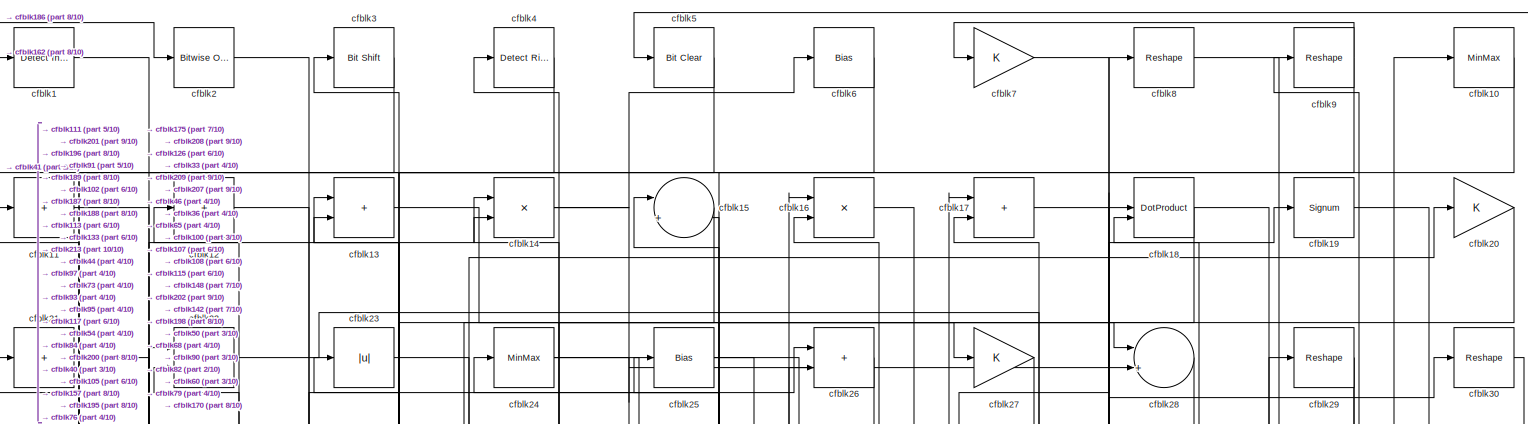
[diagram: root canvas - part 1/10, full width, top band]
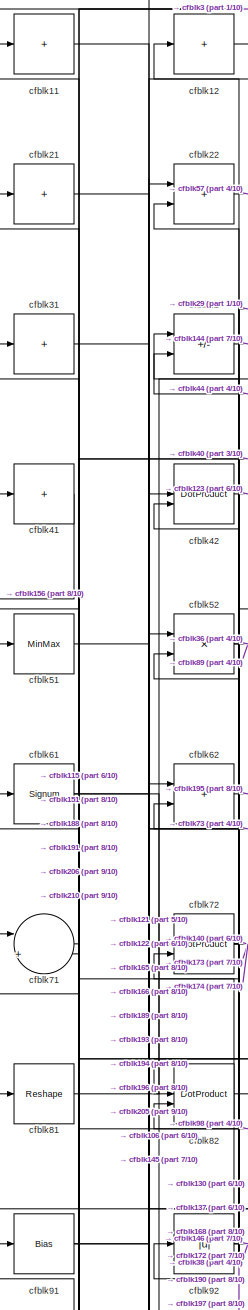
[diagram: root canvas - part 2/10, top left region]
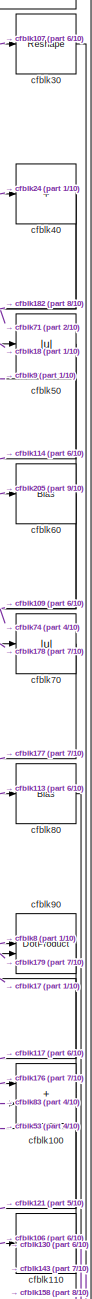
[diagram: root canvas - part 3/10, top right region]
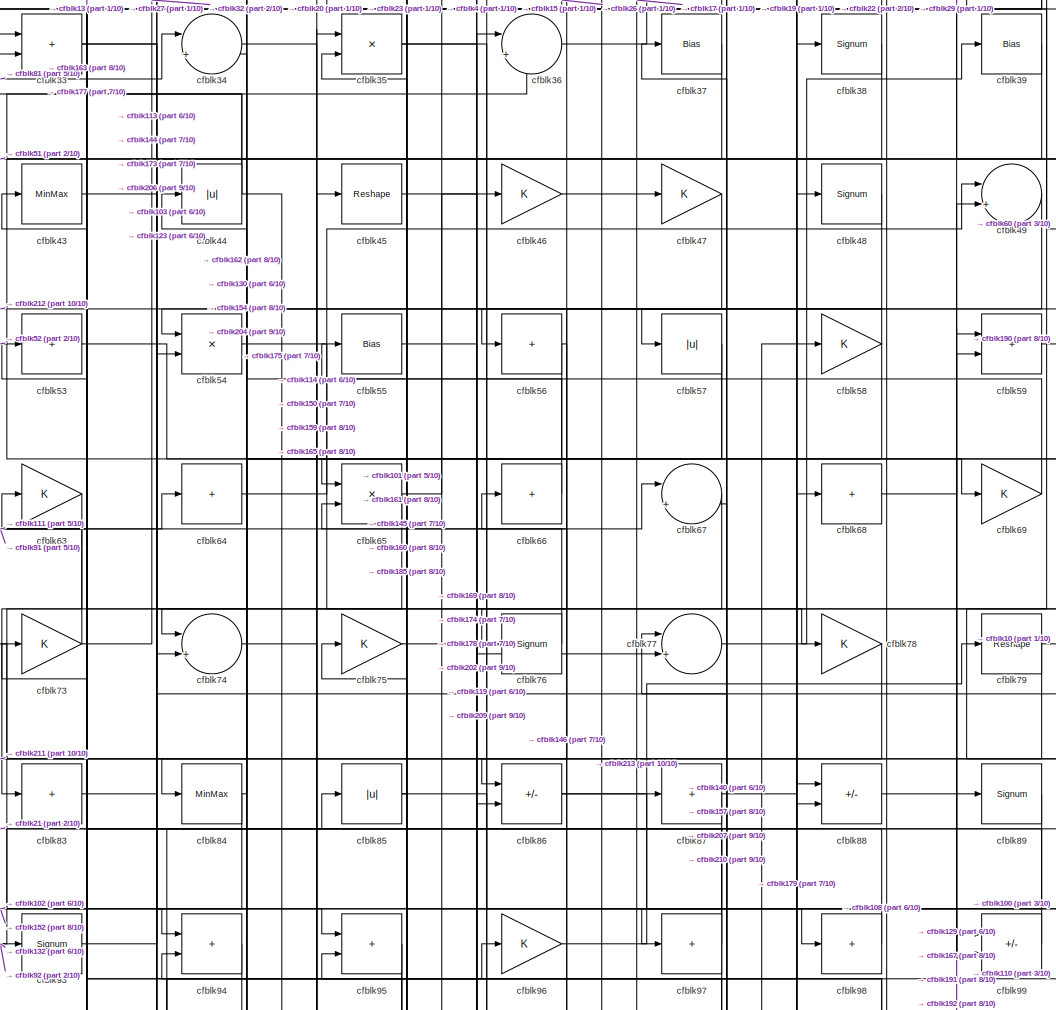
[diagram: root canvas - part 4/10, top center region]
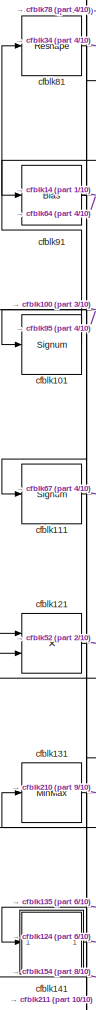
[diagram: root canvas - part 5/10, middle left region]
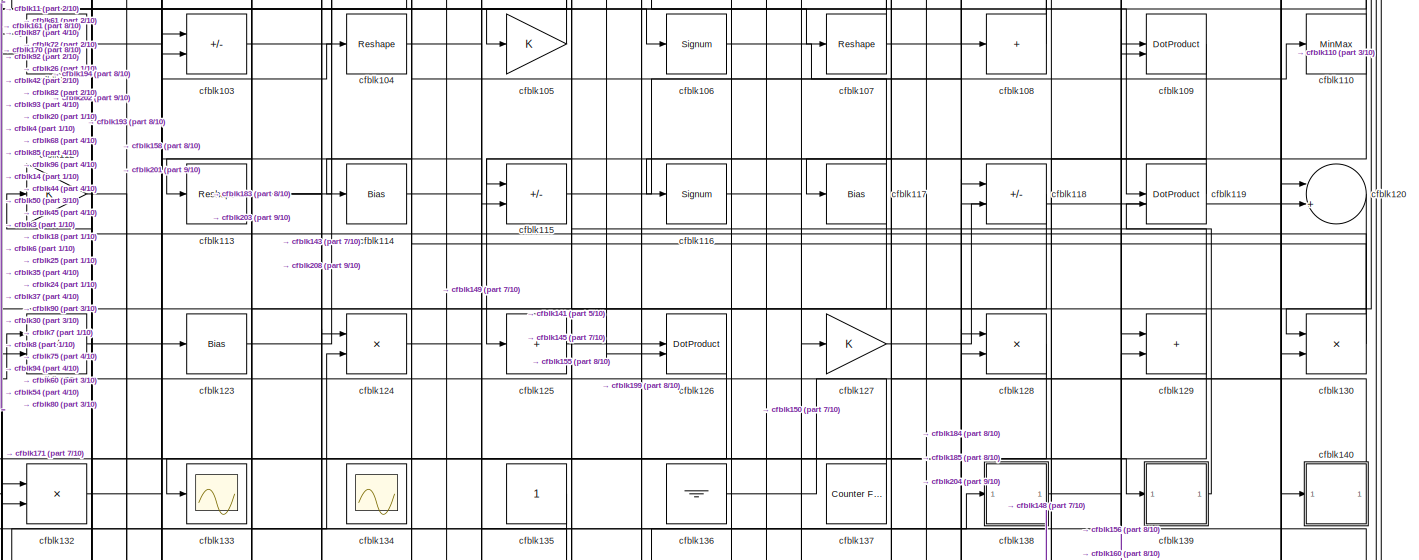
[diagram: root canvas - part 6/10, full width, middle band]
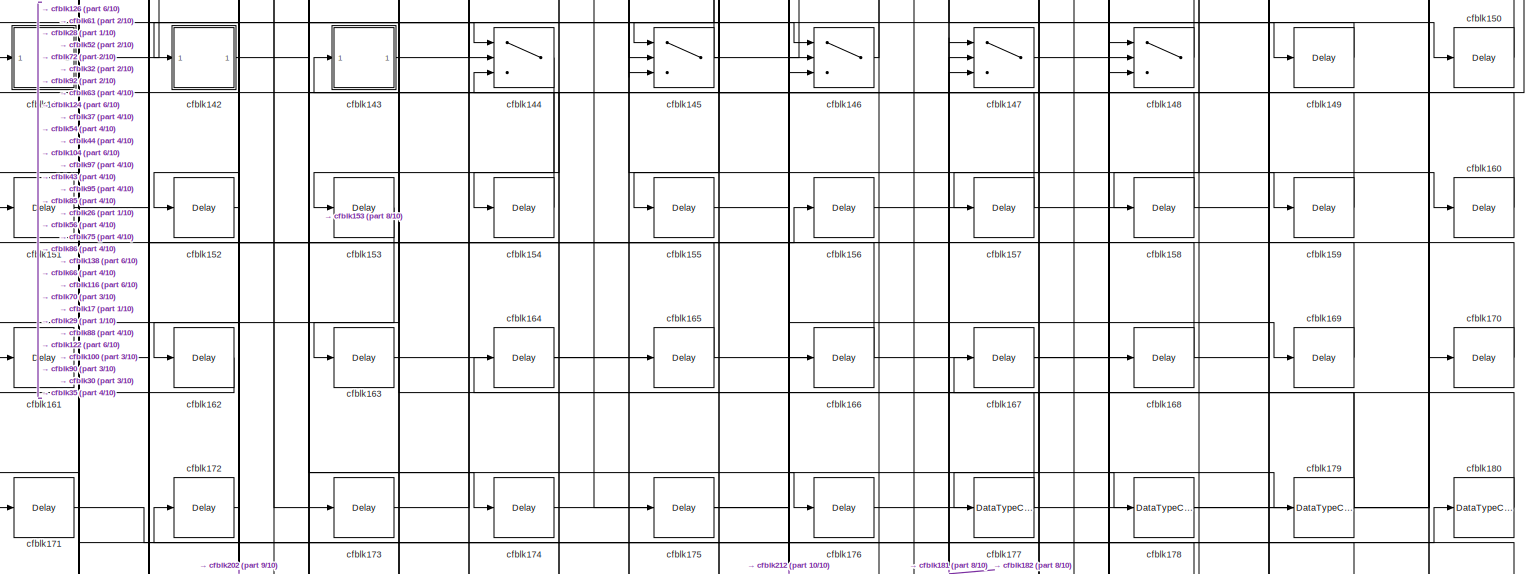
[diagram: root canvas - part 7/10, full width, bottom band]
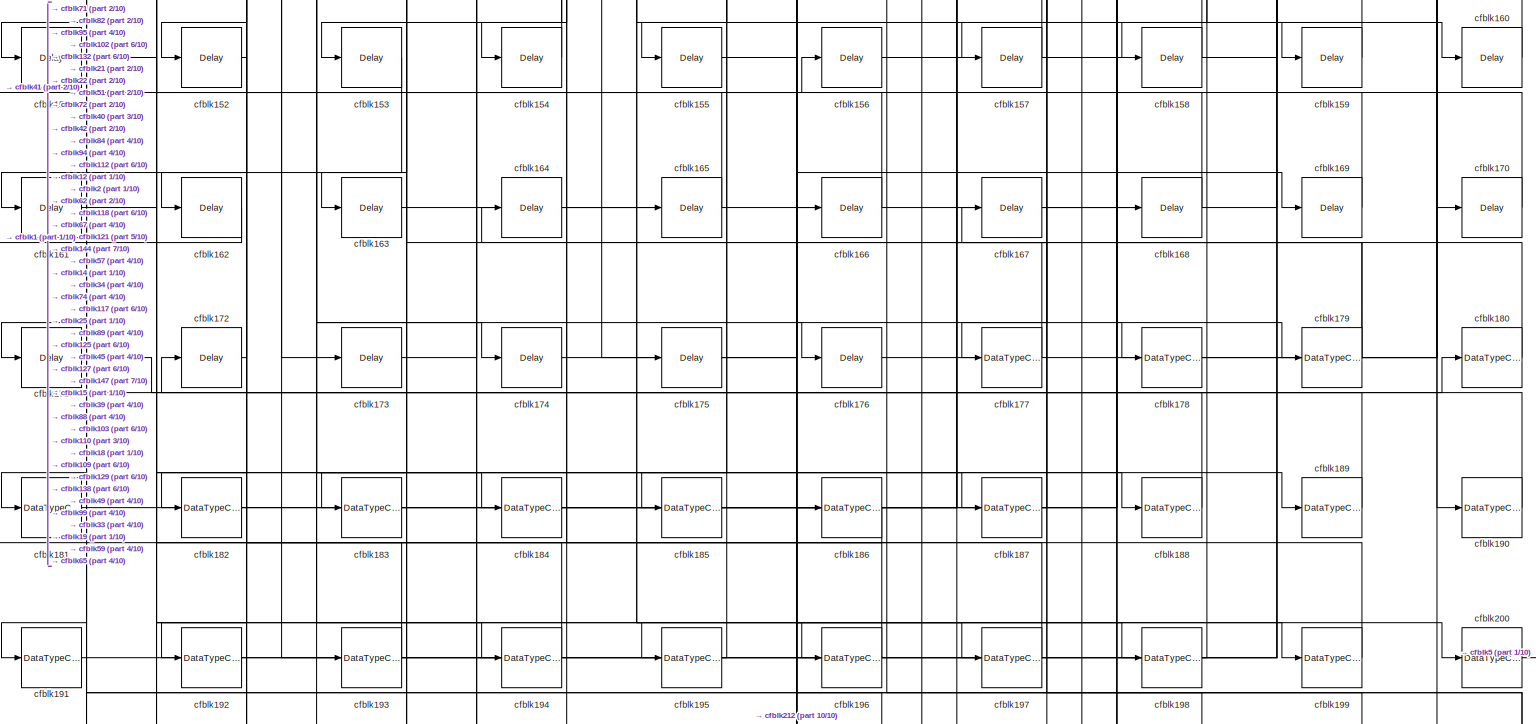
[diagram: root canvas - part 8/10, full width, bottom band]
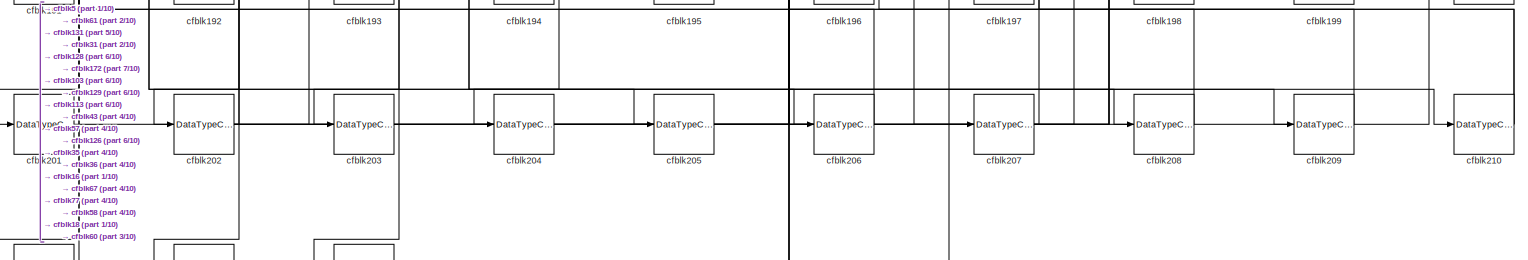
[diagram: root canvas - part 9/10, full width, bottom band]
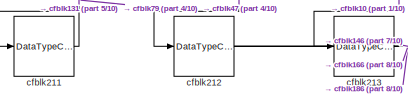
[diagram: root canvas - part 10/10, bottom left region]
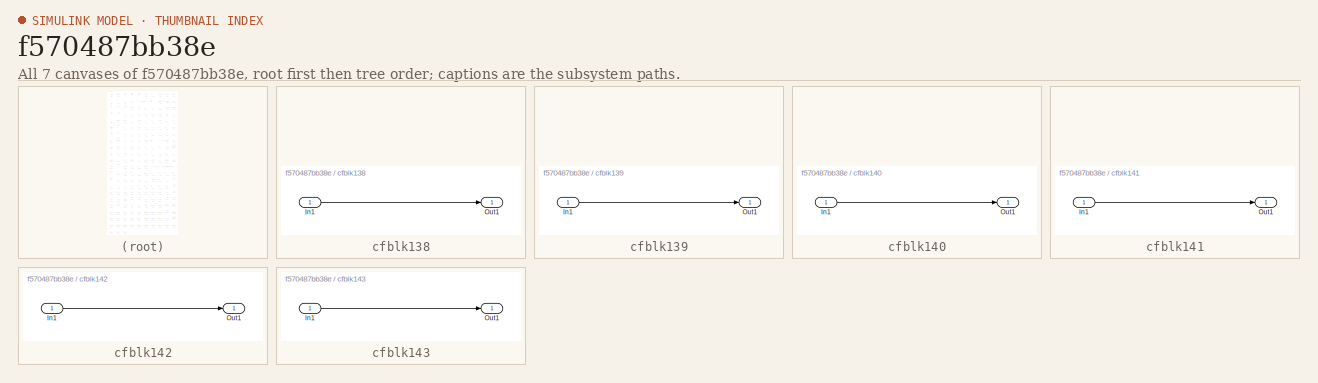
[diagram: thumbnail index - all 7 canvases of the model, root first then tree order]
MODEL slx_f570487bb38e
KIND model
CONFIG AbsTol = auto
CONFIG EnableMultiTasking = off
CONFIG FixedStep = auto
CONFIG MaxStep = auto
CONFIG MinStep = auto
CONFIG RelTol = 1e-3
CONFIG SampleTimeConstraint = Unconstrained
CONFIG SolverName = VariableStepAuto
CONFIG StartTime = 0.0
CONFIG StopTime = 10.0
BLOCK [Reference] cfblk1  REF=simulink/Logic and Bit
Operations/Detect
Increase
  LibrarySourceBlock = hdlsllib/Logic and Bit\nOperations/Detect\nIncrease
  SourceBlock = simulink/Logic and Bit\nOperations/Detect\nIncrease
  SourceType = Detect Increase
BLOCK [MinMax] cfblk10
BLOCK [Sum] cfblk100
  IconShape = rectangular
BLOCK [Signum] cfblk101
BLOCK [Sum] cfblk102
  IconShape = rectangular
BLOCK [Sum] cfblk103
  IconShape = rectangular
  Inputs = +-
BLOCK [Reshape] cfblk104
BLOCK [Gain] cfblk105
BLOCK [Signum] cfblk106
BLOCK [Reshape] cfblk107
BLOCK [Sum] cfblk108
  IconShape = rectangular
  Inputs = +
BLOCK [DotProduct] cfblk109
  OutDataTypeStr = Inherit: Inherit via internal rule
BLOCK [Sum] cfblk11
  IconShape = rectangular
  Inputs = +
BLOCK [MinMax] cfblk110
BLOCK [Signum] cfblk111
BLOCK [Gain] cfblk112
BLOCK [Reshape] cfblk113
BLOCK [Bias] cfblk114
  Bias = 0.0
  SaturateOnIntegerOverflow = off
BLOCK [Sum] cfblk115
  IconShape = rectangular
  Inputs = +-
BLOCK [Signum] cfblk116
BLOCK [Bias] cfblk117
  Bias = 0.0
  SaturateOnIntegerOverflow = off
BLOCK [Sum] cfblk118
  IconShape = rectangular
  Inputs = +-
BLOCK [DotProduct] cfblk119
  OutDataTypeStr = Inherit: Inherit via internal rule
BLOCK [Sum] cfblk12
  IconShape = rectangular
  Inputs = +
BLOCK [Sum] cfblk120
  Inputs = |++
BLOCK [Product] cfblk121
  Inputs = */
  RndMeth = Zero
  SaturateOnIntegerOverflow = on
BLOCK [Sum] cfblk122
  IconShape = rectangular
  Inputs = +-
BLOCK [Bias] cfblk123
  Bias = 0.0
  SaturateOnIntegerOverflow = off
BLOCK [Product] cfblk124
  Inputs = */
  RndMeth = Zero
  SaturateOnIntegerOverflow = on
BLOCK [Sum] cfblk125
  IconShape = rectangular
  Inputs = +
BLOCK [DotProduct] cfblk126
  OutDataTypeStr = Inherit: Inherit via internal rule
BLOCK [Gain] cfblk127
BLOCK [Product] cfblk128
  Inputs = */
  RndMeth = Zero
  SaturateOnIntegerOverflow = on
BLOCK [Sum] cfblk129
  IconShape = rectangular
BLOCK [Sum] cfblk13
  IconShape = rectangular
BLOCK [Product] cfblk130
  Inputs = */
  RndMeth = Zero
  SaturateOnIntegerOverflow = on
BLOCK [MinMax] cfblk131
BLOCK [Product] cfblk132
  Inputs = */
  RndMeth = Zero
  SaturateOnIntegerOverflow = on
BLOCK [Scope] cfblk133
  Floating = off
  NumInputPorts = 1
  ScopeSpecificationString = Simulink.scopes.TimeScopeBlockCfg('CurrentConfiguration', extmgr.ConfigurationSet(extmgr.Configuration('Core','General UI',true),extmgr.Configuration('Core','Source UI',true),extmgr.Configuration('Sources','WiredSimulink',true,'DataLoggingVariableName','ScopeData2','DataLoggingSaveFormat','Array','DataLoggingLimitDataPoints',true,'DataLoggingDecimation','1'),extmgr.Configuration('Visuals','Time Do...<+868ch>
BLOCK [Scope] cfblk134
  Floating = on
  NumInputPorts = 1
  ScopeSpecificationString = Simulink.scopes.TimeScopeBlockCfg('CurrentConfiguration', extmgr.ConfigurationSet(extmgr.Configuration('Core','General UI',true,'FigureColor',[0.156862745098039 0.156862745098039 0.156862745098039]),extmgr.Configuration('Core','Source UI',true),extmgr.Configuration('Sources','WiredSimulink',true,'DataLoggingVariableName','ScopeData1','DataLoggingSaveFormat','StructureWithTime','DataLoggingLimitDat...<+2713ch>
BLOCK [Constant] cfblk135
  SampleTime = -1
BLOCK [Ground] cfblk136
BLOCK [Reference] cfblk137  REF=hdlsllib/Sources/Counter
Free-Running
  SourceBlock = hdlsllib/Sources/Counter\nFree-Running
  SourceType = Counter Free-Running
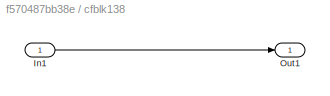
BLOCK [SubSystem] cfblk138
  LibrarySourceBlock = hdlsllib/Ports &\nSubsystems/Subsystem
BLOCK [Inport] cfblk138/In1
BLOCK [Outport] cfblk138/Out1
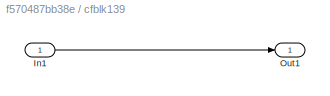
BLOCK [SubSystem] cfblk139
  LibrarySourceBlock = hdlsllib/Ports &\nSubsystems/Subsystem
BLOCK [Inport] cfblk139/In1
BLOCK [Outport] cfblk139/Out1
BLOCK [Product] cfblk14
  Inputs = */
  RndMeth = Zero
  SaturateOnIntegerOverflow = on
BLOCK [SubSystem] cfblk140
  LibrarySourceBlock = hdlsllib/Ports &\nSubsystems/Subsystem
BLOCK [Inport] cfblk140/In1
BLOCK [Outport] cfblk140/Out1
BLOCK [SubSystem] cfblk141
  LibrarySourceBlock = hdlsllib/Ports &\nSubsystems/Subsystem
BLOCK [Inport] cfblk141/In1
BLOCK [Outport] cfblk141/Out1
BLOCK [SubSystem] cfblk142
  LibrarySourceBlock = hdlsllib/Ports &\nSubsystems/Subsystem
BLOCK [Inport] cfblk142/In1
BLOCK [Outport] cfblk142/Out1
BLOCK [SubSystem] cfblk143
  LibrarySourceBlock = hdlsllib/Ports &\nSubsystems/Subsystem
BLOCK [Inport] cfblk143/In1
BLOCK [Outport] cfblk143/Out1
BLOCK [Switch] cfblk144
  InputSameDT = off
  SaturateOnIntegerOverflow = off
BLOCK [Switch] cfblk145
  InputSameDT = off
  SaturateOnIntegerOverflow = off
BLOCK [Switch] cfblk146
  InputSameDT = off
  SaturateOnIntegerOverflow = off
BLOCK [Switch] cfblk147
  InputSameDT = off
  SaturateOnIntegerOverflow = off
BLOCK [Switch] cfblk148
  InputSameDT = off
  SaturateOnIntegerOverflow = off
BLOCK [Delay] cfblk149
  InputPortMap = u0
  SampleTime = 1
BLOCK [Sum] cfblk15
  Inputs = |++
BLOCK [Delay] cfblk150
  InputPortMap = u0
  SampleTime = 1
BLOCK [Delay] cfblk151
  InputPortMap = u0
  SampleTime = 1
BLOCK [Delay] cfblk152
  InputPortMap = u0
  SampleTime = 1
BLOCK [Delay] cfblk153
  InputPortMap = u0
  SampleTime = 1
BLOCK [Delay] cfblk154
  InputPortMap = u0
  SampleTime = 1
BLOCK [Delay] cfblk155
  InputPortMap = u0
  SampleTime = 1
BLOCK [Delay] cfblk156
  InputPortMap = u0
  SampleTime = 1
BLOCK [Delay] cfblk157
  InputPortMap = u0
  SampleTime = 1
BLOCK [Delay] cfblk158
  InputPortMap = u0
  SampleTime = 1
BLOCK [Delay] cfblk159
  InputPortMap = u0
  SampleTime = 1
BLOCK [Product] cfblk16
  Inputs = */
  RndMeth = Zero
  SaturateOnIntegerOverflow = on
BLOCK [Delay] cfblk160
  InputPortMap = u0
  SampleTime = 1
BLOCK [Delay] cfblk161
  InputPortMap = u0
  SampleTime = 1
BLOCK [Delay] cfblk162
  InputPortMap = u0
  SampleTime = 1
BLOCK [Delay] cfblk163
  InputPortMap = u0
  SampleTime = 1
BLOCK [Delay] cfblk164
  InputPortMap = u0
  SampleTime = 1
BLOCK [Delay] cfblk165
  InputPortMap = u0
  SampleTime = 1
BLOCK [Delay] cfblk166
  InputPortMap = u0
  SampleTime = 1
BLOCK [Delay] cfblk167
  InputPortMap = u0
  SampleTime = 1
BLOCK [Delay] cfblk168
  InputPortMap = u0
  SampleTime = 1
BLOCK [Delay] cfblk169
  InputPortMap = u0
  SampleTime = 1
BLOCK [Sum] cfblk17
  IconShape = rectangular
BLOCK [Delay] cfblk170
  InputPortMap = u0
  SampleTime = 1
BLOCK [Delay] cfblk171
  InputPortMap = u0
  SampleTime = 1
BLOCK [Delay] cfblk172
  InputPortMap = u0
  SampleTime = 1
BLOCK [Delay] cfblk173
  InputPortMap = u0
  SampleTime = 1
BLOCK [Delay] cfblk174
  InputPortMap = u0
  SampleTime = 1
BLOCK [Delay] cfblk175
  InputPortMap = u0
  SampleTime = 1
BLOCK [Delay] cfblk176
  InputPortMap = u0
  SampleTime = 1
BLOCK [DataTypeConversion] cfblk177
  OutDataTypeStr = uint8
  RndMeth = Floor
  SaturateOnIntegerOverflow = off
BLOCK [DataTypeConversion] cfblk178
  OutDataTypeStr = uint8
  RndMeth = Floor
  SaturateOnIntegerOverflow = off
BLOCK [DataTypeConversion] cfblk179
  RndMeth = Floor
  SaturateOnIntegerOverflow = off
BLOCK [DotProduct] cfblk18
  OutDataTypeStr = Inherit: Inherit via internal rule
BLOCK [DataTypeConversion] cfblk180
  OutDataTypeStr = uint8
  RndMeth = Floor
  SaturateOnIntegerOverflow = off
BLOCK [DataTypeConversion] cfblk181
  OutDataTypeStr = uint8
  RndMeth = Floor
  SaturateOnIntegerOverflow = off
BLOCK [DataTypeConversion] cfblk182
  OutDataTypeStr = uint8
  RndMeth = Floor
  SaturateOnIntegerOverflow = off
BLOCK [DataTypeConversion] cfblk183
  OutDataTypeStr = uint8
  RndMeth = Floor
  SaturateOnIntegerOverflow = off
BLOCK [DataTypeConversion] cfblk184
  OutDataTypeStr = uint8
  RndMeth = Floor
  SaturateOnIntegerOverflow = off
BLOCK [DataTypeConversion] cfblk185
  OutDataTypeStr = uint8
  RndMeth = Floor
  SaturateOnIntegerOverflow = off
BLOCK [DataTypeConversion] cfblk186
  OutDataTypeStr = boolean
  RndMeth = Floor
  SaturateOnIntegerOverflow = off
BLOCK [DataTypeConversion] cfblk187
  RndMeth = Floor
  SaturateOnIntegerOverflow = off
BLOCK [DataTypeConversion] cfblk188
  OutDataTypeStr = uint8
  RndMeth = Floor
  SaturateOnIntegerOverflow = off
BLOCK [DataTypeConversion] cfblk189
  OutDataTypeStr = uint8
  RndMeth = Floor
  SaturateOnIntegerOverflow = off
BLOCK [Signum] cfblk19
BLOCK [DataTypeConversion] cfblk190
  OutDataTypeStr = uint8
  RndMeth = Floor
  SaturateOnIntegerOverflow = off
BLOCK [DataTypeConversion] cfblk191
  OutDataTypeStr = uint8
  RndMeth = Floor
  SaturateOnIntegerOverflow = off
BLOCK [DataTypeConversion] cfblk192
  OutDataTypeStr = uint8
  RndMeth = Floor
  SaturateOnIntegerOverflow = off
BLOCK [DataTypeConversion] cfblk193
  RndMeth = Floor
  SaturateOnIntegerOverflow = off
BLOCK [DataTypeConversion] cfblk194
  OutDataTypeStr = uint8
  RndMeth = Floor
  SaturateOnIntegerOverflow = off
BLOCK [DataTypeConversion] cfblk195
  OutDataTypeStr = uint8
  RndMeth = Floor
  SaturateOnIntegerOverflow = off
BLOCK [DataTypeConversion] cfblk196
  OutDataTypeStr = uint8
  RndMeth = Floor
  SaturateOnIntegerOverflow = off
BLOCK [DataTypeConversion] cfblk197
  OutDataTypeStr = uint8
  RndMeth = Floor
  SaturateOnIntegerOverflow = off
BLOCK [DataTypeConversion] cfblk198
  OutDataTypeStr = uint8
  RndMeth = Floor
  SaturateOnIntegerOverflow = off
BLOCK [DataTypeConversion] cfblk199
  OutDataTypeStr = uint8
  RndMeth = Floor
  SaturateOnIntegerOverflow = off
BLOCK [Reference] cfblk2  REF=simulink/Logic and Bit
Operations/Bitwise
Operator
  LibrarySourceBlock = hdlsllib/Logic and Bit\nOperations/Bitwise\nOperator
  SourceBlock = simulink/Logic and Bit\nOperations/Bitwise\nOperator
  SourceType = Bitwise Operator
BLOCK [Gain] cfblk20
BLOCK [DataTypeConversion] cfblk200
  OutDataTypeStr = boolean
  RndMeth = Floor
  SaturateOnIntegerOverflow = off
BLOCK [DataTypeConversion] cfblk201
  OutDataTypeStr = uint8
  RndMeth = Floor
  SaturateOnIntegerOverflow = off
BLOCK [DataTypeConversion] cfblk202
  RndMeth = Floor
  SaturateOnIntegerOverflow = off
BLOCK [DataTypeConversion] cfblk203
  OutDataTypeStr = uint8
  RndMeth = Floor
  SaturateOnIntegerOverflow = off
BLOCK [DataTypeConversion] cfblk204
  OutDataTypeStr = uint8
  RndMeth = Floor
  SaturateOnIntegerOverflow = off
BLOCK [DataTypeConversion] cfblk205
  OutDataTypeStr = uint8
  RndMeth = Floor
  SaturateOnIntegerOverflow = off
BLOCK [DataTypeConversion] cfblk206
  OutDataTypeStr = uint8
  RndMeth = Floor
  SaturateOnIntegerOverflow = off
BLOCK [DataTypeConversion] cfblk207
  RndMeth = Floor
  SaturateOnIntegerOverflow = off
BLOCK [DataTypeConversion] cfblk208
  OutDataTypeStr = uint8
  RndMeth = Floor
  SaturateOnIntegerOverflow = off
BLOCK [DataTypeConversion] cfblk209
  OutDataTypeStr = uint8
  RndMeth = Floor
  SaturateOnIntegerOverflow = off
BLOCK [Sum] cfblk21
  IconShape = rectangular
  Inputs = +
BLOCK [DataTypeConversion] cfblk210
  RndMeth = Floor
  SaturateOnIntegerOverflow = off
BLOCK [DataTypeConversion] cfblk211
  OutDataTypeStr = uint8
  RndMeth = Floor
  SaturateOnIntegerOverflow = off
BLOCK [DataTypeConversion] cfblk212
  RndMeth = Floor
  SaturateOnIntegerOverflow = off
BLOCK [DataTypeConversion] cfblk213
  OutDataTypeStr = uint8
  RndMeth = Floor
  SaturateOnIntegerOverflow = off
BLOCK [Sum] cfblk22
  IconShape = rectangular
BLOCK [Abs] cfblk23
  SaturateOnIntegerOverflow = off
BLOCK [MinMax] cfblk24
BLOCK [Bias] cfblk25
  Bias = 0.0
  SaturateOnIntegerOverflow = off
BLOCK [Sum] cfblk26
  IconShape = rectangular
BLOCK [Gain] cfblk27
BLOCK [Sum] cfblk28
  Inputs = |++
BLOCK [Reshape] cfblk29
BLOCK [Reference] cfblk3  REF=hdlsllib/Logic and Bit
Operations/Bit Shift
  SourceBlock = hdlsllib/Logic and Bit\nOperations/Bit Shift
  SourceType = Bit Shift
BLOCK [Reshape] cfblk30
BLOCK [Sum] cfblk31
  IconShape = rectangular
  Inputs = +
BLOCK [Sum] cfblk32
  IconShape = rectangular
  Inputs = +-
BLOCK [Sum] cfblk33
  IconShape = rectangular
BLOCK [Sum] cfblk34
  Inputs = |++
BLOCK [Product] cfblk35
  Inputs = */
  RndMeth = Zero
  SaturateOnIntegerOverflow = on
BLOCK [Sum] cfblk36
  Inputs = |++
BLOCK [Bias] cfblk37
  Bias = 0.0
  SaturateOnIntegerOverflow = off
BLOCK [Signum] cfblk38
BLOCK [Bias] cfblk39
  Bias = 0.0
  SaturateOnIntegerOverflow = off
BLOCK [Reference] cfblk4  REF=hdlsllib/Logic and Bit
Operations/Detect Rise
Positive
  SourceBlock = hdlsllib/Logic and Bit\nOperations/Detect Rise\nPositive
  SourceType = Detect Rise Positive
BLOCK [Sum] cfblk40
  IconShape = rectangular
  Inputs = +
BLOCK [Sum] cfblk41
  IconShape = rectangular
  Inputs = +
BLOCK [DotProduct] cfblk42
  OutDataTypeStr = Inherit: Inherit via internal rule
BLOCK [MinMax] cfblk43
BLOCK [Abs] cfblk44
  SaturateOnIntegerOverflow = off
BLOCK [Reshape] cfblk45
BLOCK [Gain] cfblk46
BLOCK [Gain] cfblk47
BLOCK [Signum] cfblk48
BLOCK [Sum] cfblk49
  Inputs = |++
BLOCK [Reference] cfblk5  REF=simulink/Logic and Bit
Operations/Bit Clear
  LibrarySourceBlock = hdlsllib/Logic and Bit\nOperations/Bit Clear
  SourceBlock = simulink/Logic and Bit\nOperations/Bit Clear
  SourceType = Bit Clear
BLOCK [Abs] cfblk50
  SaturateOnIntegerOverflow = off
BLOCK [MinMax] cfblk51
BLOCK [Product] cfblk52
  Inputs = */
  RndMeth = Zero
  SaturateOnIntegerOverflow = on
BLOCK [Sum] cfblk53
  IconShape = rectangular
  Inputs = +
BLOCK [Product] cfblk54
  Inputs = */
  RndMeth = Zero
  SaturateOnIntegerOverflow = on
BLOCK [Bias] cfblk55
  Bias = 0.0
  SaturateOnIntegerOverflow = off
BLOCK [Sum] cfblk56
  IconShape = rectangular
  Inputs = +
BLOCK [Abs] cfblk57
  SaturateOnIntegerOverflow = off
BLOCK [Gain] cfblk58
BLOCK [Sum] cfblk59
  IconShape = rectangular
BLOCK [Bias] cfblk6
  Bias = 0.0
  SaturateOnIntegerOverflow = off
BLOCK [Bias] cfblk60
  Bias = 0.0
  SaturateOnIntegerOverflow = off
BLOCK [Signum] cfblk61
BLOCK [Sum] cfblk62
  IconShape = rectangular
BLOCK [Gain] cfblk63
BLOCK [Sum] cfblk64
  IconShape = rectangular
  Inputs = +
BLOCK [Product] cfblk65
  Inputs = */
  RndMeth = Zero
  SaturateOnIntegerOverflow = on
BLOCK [Sum] cfblk66
  IconShape = rectangular
  Inputs = +
BLOCK [Sum] cfblk67
  Inputs = |++
BLOCK [Sum] cfblk68
  IconShape = rectangular
  Inputs = +
BLOCK [Gain] cfblk69
BLOCK [Gain] cfblk7
BLOCK [Abs] cfblk70
  SaturateOnIntegerOverflow = off
BLOCK [Sum] cfblk71
  Inputs = |++
BLOCK [DotProduct] cfblk72
  OutDataTypeStr = Inherit: Inherit via internal rule
BLOCK [Gain] cfblk73
BLOCK [Sum] cfblk74
  Inputs = |++
BLOCK [Gain] cfblk75
BLOCK [Signum] cfblk76
BLOCK [Sum] cfblk77
  Inputs = |++
BLOCK [Gain] cfblk78
BLOCK [Reshape] cfblk79
BLOCK [Reshape] cfblk8
BLOCK [Bias] cfblk80
  Bias = 0.0
  SaturateOnIntegerOverflow = off
BLOCK [Reshape] cfblk81
BLOCK [DotProduct] cfblk82
  OutDataTypeStr = Inherit: Inherit via internal rule
BLOCK [Sum] cfblk83
  IconShape = rectangular
  Inputs = +
BLOCK [MinMax] cfblk84
BLOCK [Abs] cfblk85
  SaturateOnIntegerOverflow = off
BLOCK [Sum] cfblk86
  IconShape = rectangular
  Inputs = +-
BLOCK [Sum] cfblk87
  IconShape = rectangular
  Inputs = +
BLOCK [Sum] cfblk88
  IconShape = rectangular
  Inputs = +-
BLOCK [Signum] cfblk89
BLOCK [Reshape] cfblk9
BLOCK [DotProduct] cfblk90
  OutDataTypeStr = Inherit: Inherit via internal rule
BLOCK [Bias] cfblk91
  Bias = 0.0
  SaturateOnIntegerOverflow = off
BLOCK [Abs] cfblk92
  SaturateOnIntegerOverflow = off
BLOCK [Signum] cfblk93
BLOCK [Sum] cfblk94
  IconShape = rectangular
BLOCK [Sum] cfblk95
  IconShape = rectangular
BLOCK [Gain] cfblk96
BLOCK [Sum] cfblk97
  IconShape = rectangular
  Inputs = +
BLOCK [Sum] cfblk98
  IconShape = rectangular
  Inputs = +
BLOCK [Sum] cfblk99
  IconShape = rectangular
  Inputs = +-
NET cfblk100:1 -> cfblk121:2, cfblk17:2
LINE cfblk101:1 -> cfblk81:1
LINE cfblk102:1 -> cfblk26:1
LINE cfblk103:1 -> cfblk96:1
LINE cfblk104:1 -> cfblk149:1
LINE cfblk105:1 -> cfblk3:1
LINE cfblk106:1 -> cfblk110:1
NET cfblk107:1 -> cfblk24:1, cfblk30:1
NET cfblk108:1 -> cfblk75:1, cfblk94:2
LINE cfblk109:1 -> cfblk125:1
LINE cfblk10:1 -> cfblk213:1
NET cfblk110:1 -> cfblk158:1, cfblk53:1
LINE cfblk111:1 -> cfblk67:1
LINE cfblk112:1 -> cfblk193:1
NET cfblk113:1 -> cfblk208:1, cfblk68:1, cfblk80:1
LINE cfblk114:1 -> cfblk45:1
LINE cfblk115:1 -> cfblk8:1
LINE cfblk116:1 -> cfblk150:1
NET cfblk117:1 -> cfblk14:1, cfblk155:1
LINE cfblk118:1 -> cfblk183:1
LINE cfblk119:1 -> cfblk116:1
LINE cfblk11:1 -> cfblk122:2
LINE cfblk120:1 -> cfblk132:2
LINE cfblk121:1 -> cfblk52:1
LINE cfblk122:1 -> cfblk104:1
LINE cfblk123:1 -> cfblk85:1
LINE cfblk124:1 -> cfblk139:1
LINE cfblk125:1 -> cfblk199:1
LINE cfblk126:1 -> cfblk171:1
LINE cfblk127:1 -> cfblk120:2
LINE cfblk128:1 -> cfblk202:1
NET cfblk129:1 -> cfblk203:1, cfblk35:2
LINE cfblk12:1 -> cfblk188:1
NET cfblk130:1 -> cfblk44:1, cfblk72:2
LINE cfblk131:1 -> cfblk210:1
LINE cfblk132:1 -> cfblk93:1
LINE cfblk135:1 -> cfblk141:1
LINE cfblk136:1 -> cfblk120:1
LINE cfblk137:1 -> cfblk92:1
LINE cfblk138/In1:1 -> cfblk138/Out1:1
LINE cfblk138:1 -> cfblk160:1
LINE cfblk139/In1:1 -> cfblk139/Out1:1
LINE cfblk139:1 -> cfblk119:2
LINE cfblk13:1 -> cfblk28:1
LINE cfblk140/In1:1 -> cfblk140/Out1:1
LINE cfblk140:1 -> cfblk37:1
LINE cfblk141/In1:1 -> cfblk141/Out1:1
LINE cfblk141:1 -> cfblk124:2
LINE cfblk142/In1:1 -> cfblk142/Out1:1
LINE cfblk142:1 -> cfblk176:1
LINE cfblk143/In1:1 -> cfblk143/Out1:1
LINE cfblk143:1 -> cfblk124:1
LINE cfblk144:1 -> cfblk153:1
NET cfblk145:1 -> cfblk138:1, cfblk43:1, cfblk95:2
LINE cfblk146:1 -> cfblk66:1
LINE cfblk147:1 -> cfblk179:1
LINE cfblk148:1 -> cfblk122:1
LINE cfblk149:1 -> cfblk148:2
NET cfblk14:1 -> cfblk200:1, cfblk6:1
LINE cfblk150:1 -> cfblk35:1
LINE cfblk151:1 -> cfblk184:1
LINE cfblk152:1 -> cfblk192:1
LINE cfblk153:1 -> cfblk181:1
LINE cfblk154:1 -> cfblk121:1
LINE cfblk155:1 -> cfblk197:1
LINE cfblk156:1 -> cfblk129:2
LINE cfblk157:1 -> cfblk15:2
LINE cfblk158:1 -> cfblk103:1
LINE cfblk159:1 -> cfblk33:1
LINE cfblk15:1 -> cfblk54:1
LINE cfblk160:1 -> cfblk65:2
LINE cfblk161:1 -> cfblk132:1
LINE cfblk162:1 -> cfblk1:1
LINE cfblk163:1 -> cfblk88:2
LINE cfblk164:1 -> cfblk198:1
LINE cfblk165:1 -> cfblk22:1
LINE cfblk166:1 -> cfblk72:1
LINE cfblk167:1 -> cfblk49:2
LINE cfblk168:1 -> cfblk82:2
LINE cfblk169:1 -> cfblk99:1
LINE cfblk16:1 -> cfblk207:1
LINE cfblk170:1 -> cfblk102:1
LINE cfblk171:1 -> cfblk180:1
LINE cfblk172:1 -> cfblk52:2
LINE cfblk173:1 -> cfblk54:2
LINE cfblk174:1 -> cfblk86:2
LINE cfblk175:1 -> cfblk26:2
LINE cfblk176:1 -> cfblk100:1
LINE cfblk177:1 -> cfblk63:1
LINE cfblk178:1 -> cfblk70:1
NET cfblk179:1 -> cfblk144:3, cfblk88:1, cfblk90:2
LINE cfblk17:1 -> cfblk148:1
LINE cfblk180:1 -> cfblk147:1
LINE cfblk181:1 -> cfblk147:2
LINE cfblk182:1 -> cfblk147:3
LINE cfblk183:1 -> cfblk127:1
LINE cfblk184:1 -> cfblk118:1
LINE cfblk185:1 -> cfblk118:2
LINE cfblk186:1 -> cfblk2:1
NET cfblk187:1 -> cfblk167:1, cfblk168:1
LINE cfblk188:1 -> cfblk71:1
LINE cfblk189:1 -> cfblk12:1
NET cfblk18:1 -> cfblk115:1, cfblk50:1
LINE cfblk190:1 -> cfblk42:2
LINE cfblk191:1 -> cfblk59:1
LINE cfblk192:1 -> cfblk59:2
NET cfblk193:1 -> cfblk109:1, cfblk42:1
LINE cfblk194:1 -> cfblk112:1
LINE cfblk195:1 -> cfblk25:1
LINE cfblk196:1 -> cfblk62:1
LINE cfblk197:1 -> cfblk62:2
LINE cfblk198:1 -> cfblk18:2
LINE cfblk199:1 -> cfblk164:1
LINE cfblk19:1 -> cfblk170:1
LINE cfblk1:1 -> cfblk196:1
LINE cfblk200:1 -> cfblk5:1
LINE cfblk201:1 -> cfblk103:2
NET cfblk202:1 -> cfblk126:1, cfblk172:1, cfblk18:1, cfblk36:1
LINE cfblk203:1 -> cfblk128:1
LINE cfblk204:1 -> cfblk128:2
LINE cfblk205:1 -> cfblk60:1
LINE cfblk206:1 -> cfblk31:1
NET cfblk207:1 -> cfblk58:1, cfblk67:2
LINE cfblk208:1 -> cfblk16:1
LINE cfblk209:1 -> cfblk16:2
LINE cfblk20:1 -> cfblk113:1
NET cfblk210:1 -> cfblk61:1, cfblk77:1
LINE cfblk211:1 -> cfblk131:1
NET cfblk212:1 -> cfblk146:2, cfblk166:1, cfblk186:1
LINE cfblk213:1 -> cfblk47:1
LINE cfblk21:1 -> cfblk189:1
LINE cfblk22:1 -> cfblk57:1
LINE cfblk23:1 -> cfblk95:1
NET cfblk24:1 -> cfblk28:2, cfblk40:1
NET cfblk25:1 -> cfblk107:1, cfblk126:2
LINE cfblk26:1 -> cfblk33:2
LINE cfblk27:1 -> cfblk65:1
LINE cfblk28:1 -> cfblk142:1
NET cfblk29:1 -> cfblk148:3, cfblk82:1
LINE cfblk2:1 -> cfblk187:1
LINE cfblk30:1 -> cfblk143:1
LINE cfblk31:1 -> cfblk205:1
LINE cfblk32:1 -> cfblk144:1
NET cfblk33:1 -> cfblk74:2, cfblk78:1
LINE cfblk34:1 -> cfblk159:1
NET cfblk35:1 -> cfblk119:1, cfblk209:1
LINE cfblk36:1 -> cfblk19:1
LINE cfblk37:1 -> cfblk144:2
LINE cfblk38:1 -> cfblk51:1
LINE cfblk39:1 -> cfblk157:1
LINE cfblk3:1 -> cfblk41:1
NET cfblk40:1 -> cfblk182:1, cfblk71:2
LINE cfblk41:1 -> cfblk156:1
LINE cfblk42:1 -> cfblk123:1
LINE cfblk43:1 -> cfblk206:1
NET cfblk44:1 -> cfblk13:2, cfblk175:1, cfblk32:2
LINE cfblk45:1 -> cfblk169:1
LINE cfblk46:1 -> cfblk17:1
LINE cfblk47:1 -> cfblk212:1
LINE cfblk48:1 -> cfblk84:1
LINE cfblk49:1 -> cfblk76:1
LINE cfblk4:1 -> cfblk133:1
LINE cfblk50:1 -> cfblk114:1
LINE cfblk51:1 -> cfblk194:1
NET cfblk52:1 -> cfblk36:2, cfblk89:1
LINE cfblk53:1 -> cfblk69:1
LINE cfblk54:1 -> cfblk130:2
LINE cfblk55:1 -> cfblk77:2
NET cfblk56:1 -> cfblk146:3, cfblk86:1
NET cfblk57:1 -> cfblk154:1, cfblk204:1
NET cfblk58:1 -> cfblk56:1, cfblk97:1
LINE cfblk59:1 -> cfblk190:1
LINE cfblk5:1 -> cfblk201:1
NET cfblk60:1 -> cfblk109:2, cfblk74:1, cfblk9:1
NET cfblk61:1 -> cfblk106:1, cfblk145:3
LINE cfblk62:1 -> cfblk195:1
LINE cfblk63:1 -> cfblk94:1
LINE cfblk64:1 -> cfblk49:1
NET cfblk65:1 -> cfblk46:1, cfblk83:1
LINE cfblk66:1 -> cfblk55:1
LINE cfblk67:1 -> cfblk163:1
LINE cfblk68:1 -> cfblk29:1
LINE cfblk69:1 -> cfblk34:2
LINE cfblk6:1 -> cfblk105:1
LINE cfblk70:1 -> cfblk177:1
LINE cfblk71:1 -> cfblk151:1
NET cfblk72:1 -> cfblk140:1, cfblk173:1, cfblk174:1, cfblk22:2
NET cfblk73:1 -> cfblk27:1, cfblk32:1
LINE cfblk74:1 -> cfblk165:1
LINE cfblk75:1 -> cfblk178:1
LINE cfblk76:1 -> cfblk15:1
LINE cfblk77:1 -> cfblk39:1
LINE cfblk78:1 -> cfblk91:1
NET cfblk79:1 -> cfblk10:1, cfblk211:1
LINE cfblk7:1 -> cfblk108:1
LINE cfblk80:1 -> cfblk130:1
LINE cfblk81:1 -> cfblk34:1
NET cfblk82:1 -> cfblk115:2, cfblk11:1, cfblk191:1
LINE cfblk83:1 -> cfblk100:2
NET cfblk84:1 -> cfblk152:1, cfblk4:1
NET cfblk85:1 -> cfblk129:1, cfblk145:1
NET cfblk86:1 -> cfblk87:1, cfblk98:1
NET cfblk87:1 -> cfblk102:2, cfblk48:1
LINE cfblk88:1 -> cfblk99:2
LINE cfblk89:1 -> cfblk185:1
LINE cfblk8:1 -> cfblk90:1
LINE cfblk90:1 -> cfblk117:1
NET cfblk91:1 -> cfblk14:2, cfblk64:1
NET cfblk92:1 -> cfblk146:1, cfblk38:1
LINE cfblk93:1 -> cfblk20:1
LINE cfblk94:1 -> cfblk162:1
NET cfblk95:1 -> cfblk101:1, cfblk161:1
LINE cfblk96:1 -> cfblk79:1
NET cfblk97:1 -> cfblk13:1, cfblk145:2, cfblk23:1
LINE cfblk98:1 -> cfblk21:1
LINE cfblk99:1 -> cfblk73:1
NET cfblk9:1 -> cfblk111:1, cfblk7:1
note: NET lines group one-source signal fan-out (src -> all destinations, sorted); 1:1 wires keep LINE
